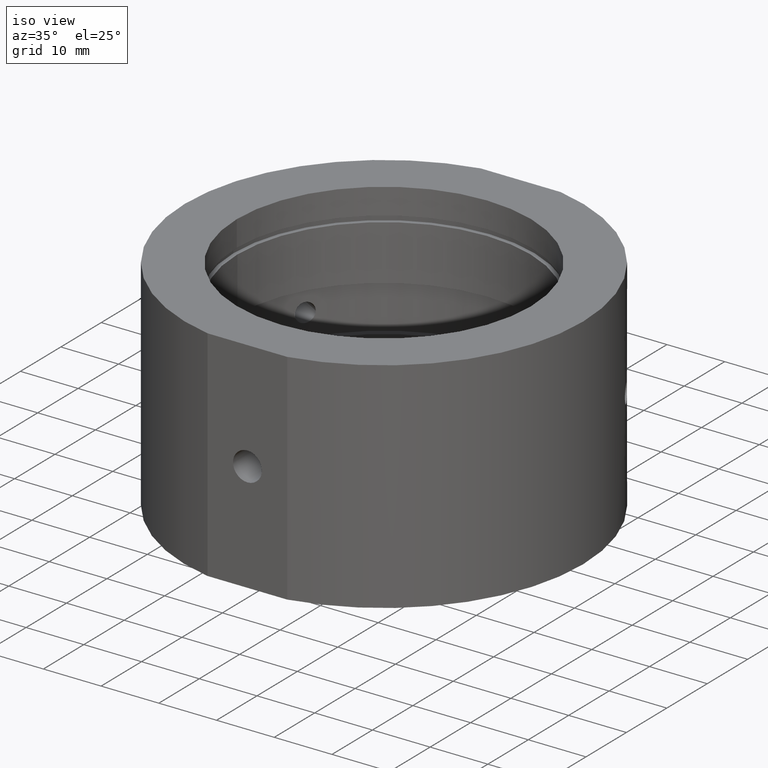
[diagram: clean part render]
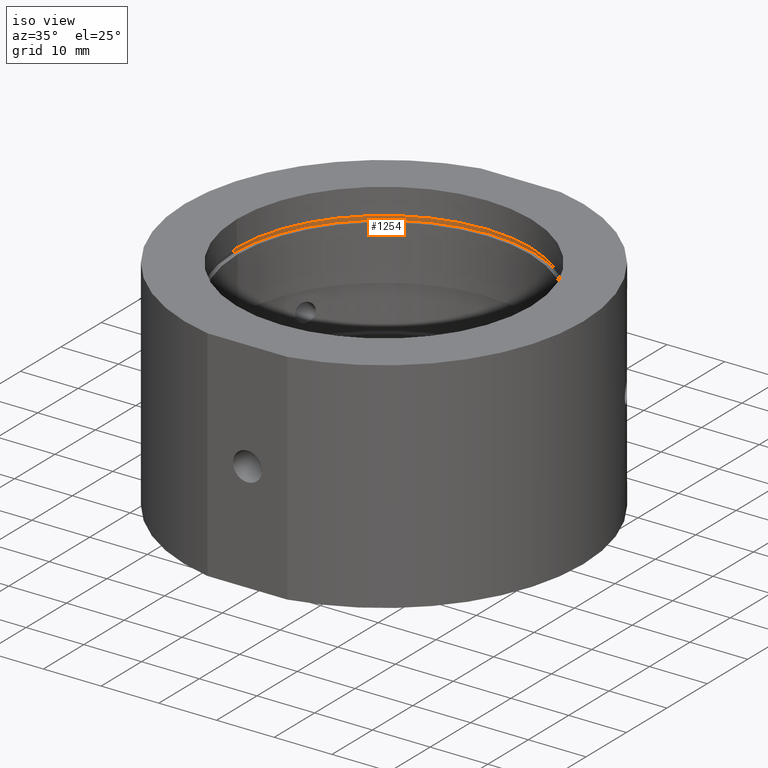
[diagram: same view with one face highlighted and labeled with its STEP entity id]
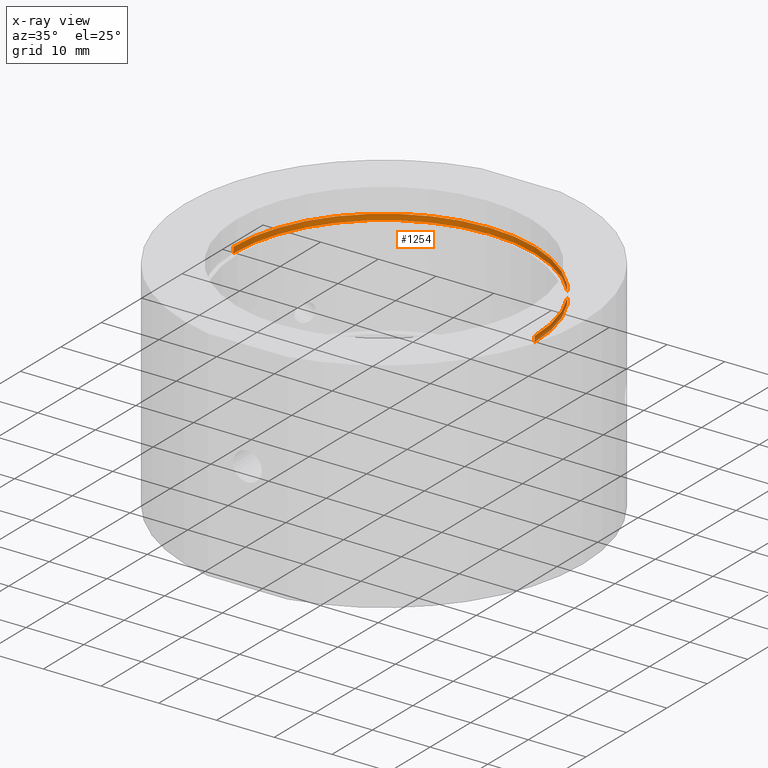
[diagram: x-ray of the same camera — body ghosted, the highlighted face saturated]
A machine part, iso view. The second image highlights one B-rep face of the part: STEP entity #1254.
The next image is the same camera in x-ray: the body ghosted, the highlighted face saturated — about 6% of this face is hidden behind the body in this view.
In plain terms, the highlighted cylindrical surface (partial cylindrical patch) has radius 26.1 mm, axis along (-0, -0, -1).
Its self-contained STEP definition (entity closure, byte-faithful):
#100 = CIRCLE ( 'NONE', #255, 26.09999999999999800 ) ;
#183 = AXIS2_PLACEMENT_3D ( 'NONE', #420, #972, #757 ) ;
#218 = VERTEX_POINT ( 'NONE', #639 ) ;
#221 = DIRECTION ( 'NONE',  ( -1.000000000000000000, 0.0000000000000000000, 1.329290019905599400E-016 ) ) ;
#241 = CARTESIAN_POINT ( 'NONE',  ( 26.10000000000000500, 3.196328145774591500E-015, 14.49999999999999500 ) ) ;
#254 = ORIENTED_EDGE ( 'NONE', *, *, #1309, .T. ) ;
#255 = AXIS2_PLACEMENT_3D ( 'NONE', #899, #567, #221 ) ;
#282 = VERTEX_POINT ( 'NONE', #850 ) ;
#295 = DIRECTION ( 'NONE',  ( -1.224646799147350500E-016, -0.0000000000000000000, -1.000000000000000000 ) ) ;
#318 = LINE ( 'NONE', #779, #439 ) ;
#322 = EDGE_CURVE ( 'NONE', #218, #282, #566, .T. ) ;
#420 = CARTESIAN_POINT ( 'NONE',  ( 5.564680930534238900E-015, 0.0000000000000000000, 13.49999999999999800 ) ) ;
#439 = VECTOR ( 'NONE', #790, 1000.000000000000000 ) ;
#491 = ORIENTED_EDGE ( 'NONE', *, *, #322, .T. ) ;
#566 = CIRCLE ( 'NONE', #183, 26.09999999999999800 ) ;
#567 = DIRECTION ( 'NONE',  ( -1.224646799147350500E-016, -0.0000000000000000000, -1.000000000000000000 ) ) ;
#581 = EDGE_CURVE ( 'NONE', #1091, #282, #318, .T. ) ;
#639 = CARTESIAN_POINT ( 'NONE',  ( -26.09999999999999100, 0.0000000000000000000, 13.50000000000000200 ) ) ;
#640 = EDGE_CURVE ( 'NONE', #947, #1091, #100, .T. ) ;
#732 = CARTESIAN_POINT ( 'NONE',  ( 0.0000000000000000000, 0.0000000000000000000, -31.93906810035839800 ) ) ;
#751 = DIRECTION ( 'NONE',  ( -1.000000000000000000, 0.0000000000000000000, 0.0000000000000000000 ) ) ;
#756 = EDGE_LOOP ( 'NONE', ( #1321, #1101, #254, #491 ) ) ;
#757 = DIRECTION ( 'NONE',  ( -1.000000000000000000, 0.0000000000000000000, 1.329290019905599400E-016 ) ) ;
#779 = CARTESIAN_POINT ( 'NONE',  ( 26.09999999999999800, 3.196328145774591500E-015, -31.93906810035839800 ) ) ;
#790 = DIRECTION ( 'NONE',  ( -1.224646799147350500E-016, -0.0000000000000000000, -1.000000000000000000 ) ) ;
#838 = DIRECTION ( 'NONE',  ( -1.224646799147350500E-016, -0.0000000000000000000, -1.000000000000000000 ) ) ;
#850 = CARTESIAN_POINT ( 'NONE',  ( 26.10000000000000500, 3.196328145774591500E-015, 13.49999999999999500 ) ) ;
#897 = CYLINDRICAL_SURFACE ( 'NONE', #1423, 26.09999999999999800 ) ;
#899 = CARTESIAN_POINT ( 'NONE',  ( 5.687145610448973200E-015, 0.0000000000000000000, 14.49999999999999800 ) ) ;
#947 = VERTEX_POINT ( 'NONE', #1165 ) ;
#972 = DIRECTION ( 'NONE',  ( -1.224646799147350500E-016, -0.0000000000000000000, -1.000000000000000000 ) ) ;
#1091 = VERTEX_POINT ( 'NONE', #241 ) ;
#1101 = ORIENTED_EDGE ( 'NONE', *, *, #640, .F. ) ;
#1161 = CARTESIAN_POINT ( 'NONE',  ( -26.09999999999999800, 0.0000000000000000000, -31.93906810035839800 ) ) ;
#1165 = CARTESIAN_POINT ( 'NONE',  ( -26.09999999999999100, 0.0000000000000000000, 14.50000000000000200 ) ) ;
#1171 = LINE ( 'NONE', #1161, #1207 ) ;
#1193 = FACE_OUTER_BOUND ( 'NONE', #756, .T. ) ;
#1207 = VECTOR ( 'NONE', #838, 1000.000000000000000 ) ;
#1254 = ADVANCED_FACE ( 'NONE', ( #1193 ), #897, .F. ) ;
#1309 = EDGE_CURVE ( 'NONE', #947, #218, #1171, .T. ) ;
#1321 = ORIENTED_EDGE ( 'NONE', *, *, #581, .F. ) ;
#1423 = AXIS2_PLACEMENT_3D ( 'NONE', #732, #295, #751 ) ;